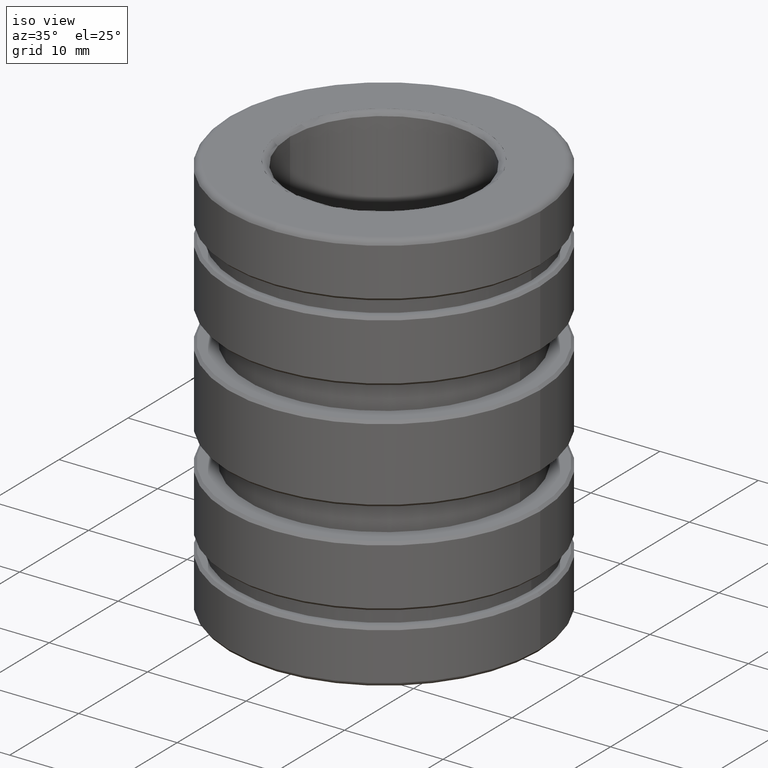
[diagram: clean part render]
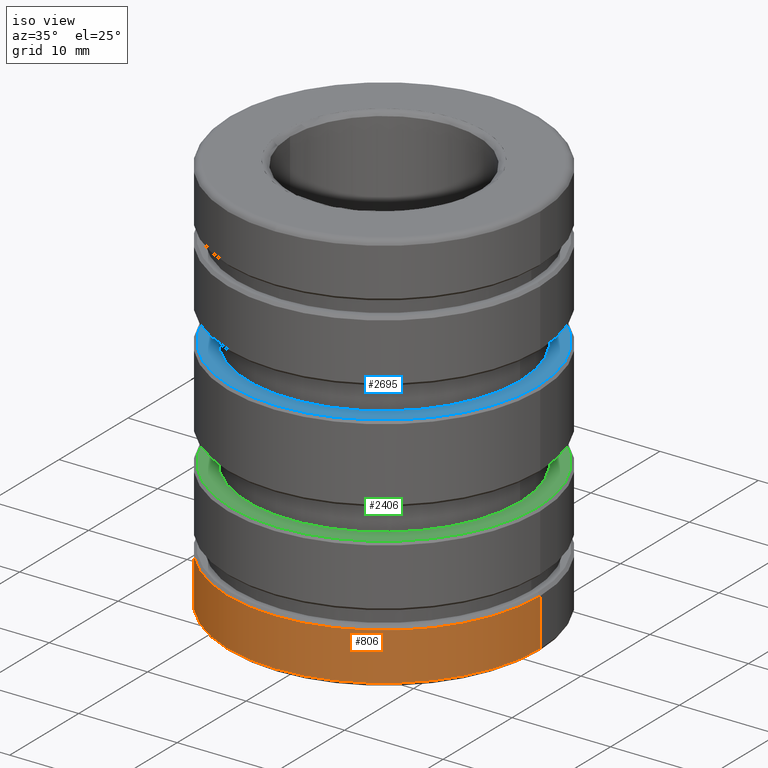
[diagram: same view with three faces highlighted in distinct colors, each labeled with its STEP entity id]
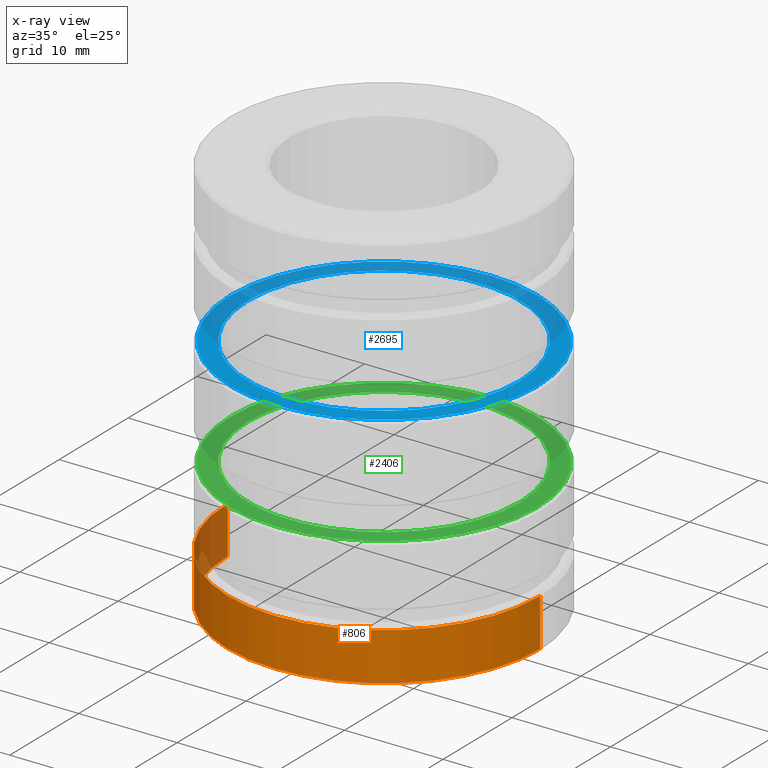
[diagram: x-ray of the same camera — body ghosted, the three highlighted faces saturated]
A machine part, iso view with three faces highlighted in distinct colors.
The next image is the same camera in x-ray (body ghosted, the three faces saturated) — at least one of them is partly hidden behind the body in this view.
Their STEP definitions:

[orange] entity #806 — the highlighted cylindrical surface (partial cylindrical patch) has radius 15.8655 mm, axis along (0, 0, 1).
#15 = CARTESIAN_POINT ( 'NONE',  ( 0.6246249999999999858, 0.000000000000000000, -0.5989999999999999769 ) ) ;
#68 = FACE_OUTER_BOUND ( 'NONE', #997, .T. ) ;
#196 = CARTESIAN_POINT ( 'NONE',  ( 0.6246249999999999858, -3.032960542342103792E-32, -0.7901490131151777119 ) ) ;
#373 = DIRECTION ( 'NONE',  ( -1.000000000000000000, 0.000000000000000000, 0.000000000000000000 ) ) ;
#417 = ORIENTED_EDGE ( 'NONE', *, *, #2651, .T. ) ;
#468 = CARTESIAN_POINT ( 'NONE',  ( 0.6246249999999999858, 0.000000000000000000, -0.8087499999999999689 ) ) ;
#608 = EDGE_CURVE ( 'NONE', #2359, #1093, #977, .T. ) ;
#781 = DIRECTION ( 'NONE',  ( -0.000000000000000000, -0.000000000000000000, 1.000000000000000000 ) ) ;
#806 = ADVANCED_FACE ( 'NONE', ( #68 ), #2140, .T. ) ;
#818 = CIRCLE ( 'NONE', #1559, 0.6246249999999999858 ) ;
#853 = CARTESIAN_POINT ( 'NONE',  ( 0.000000000000000000, -1.381038085112767818E-16, -0.7901490131151777119 ) ) ;
#921 = EDGE_CURVE ( 'NONE', #1472, #987, #1972, .T. ) ;
#977 = LINE ( 'NONE', #1823, #2021 ) ;
#984 = CARTESIAN_POINT ( 'NONE',  ( 0.000000000000000000, -1.381038085112767818E-16, -0.7901490131151777119 ) ) ;
#987 = VERTEX_POINT ( 'NONE', #15 ) ;
#997 = EDGE_LOOP ( 'NONE', ( #1605, #2228, #417, #2133, #1033 ) ) ;
#1033 = ORIENTED_EDGE ( 'NONE', *, *, #1121, .F. ) ;
#1093 = VERTEX_POINT ( 'NONE', #1662 ) ;
#1107 = AXIS2_PLACEMENT_3D ( 'NONE', #1952, #1530, #373 ) ;
#1121 = EDGE_CURVE ( 'NONE', #1093, #987, #1279, .T. ) ;
#1203 = EDGE_CURVE ( 'NONE', #2359, #2086, #2622, .T. ) ;
#1268 = DIRECTION ( 'NONE',  ( 0.000000000000000000, -1.000000000000000000, 2.186790469212938433E-16 ) ) ;
#1279 = CIRCLE ( 'NONE', #1107, 0.6246249999999999858 ) ;
#1299 = DIRECTION ( 'NONE',  ( -0.000000000000000000, -0.000000000000000000, 1.000000000000000000 ) ) ;
#1420 = AXIS2_PLACEMENT_3D ( 'NONE', #853, #1892, #1268 ) ;
#1472 = VERTEX_POINT ( 'NONE', #196 ) ;
#1530 = DIRECTION ( 'NONE',  ( -0.000000000000000000, -0.000000000000000000, 1.000000000000000000 ) ) ;
#1559 = AXIS2_PLACEMENT_3D ( 'NONE', #984, #2163, #1845 ) ;
#1578 = CARTESIAN_POINT ( 'NONE',  ( -7.649450069174155443E-17, -0.6246250000000002078, -0.7901490131151776009 ) ) ;
#1605 = ORIENTED_EDGE ( 'NONE', *, *, #608, .F. ) ;
#1607 = AXIS2_PLACEMENT_3D ( 'NONE', #2740, #1299, #1944 ) ;
#1662 = CARTESIAN_POINT ( 'NONE',  ( -0.6246249999999999858, 7.649450069174152978E-17, -0.5989999999999999769 ) ) ;
#1823 = CARTESIAN_POINT ( 'NONE',  ( -0.6246249999999999858, 7.649450069174152978E-17, -0.8087499999999999689 ) ) ;
#1845 = DIRECTION ( 'NONE',  ( 0.000000000000000000, -1.000000000000000000, 2.186790469212938433E-16 ) ) ;
#1892 = DIRECTION ( 'NONE',  ( 0.000000000000000000, 1.325912000268840659E-16, 1.000000000000000000 ) ) ;
#1944 = DIRECTION ( 'NONE',  ( 1.000000000000000000, 0.000000000000000000, 0.000000000000000000 ) ) ;
#1952 = CARTESIAN_POINT ( 'NONE',  ( 0.000000000000000000, 0.000000000000000000, -0.5989999999999999769 ) ) ;
#1972 = LINE ( 'NONE', #468, #2363 ) ;
#2001 = DIRECTION ( 'NONE',  ( -0.000000000000000000, -0.000000000000000000, 1.000000000000000000 ) ) ;
#2021 = VECTOR ( 'NONE', #781, 39.37007874015748143 ) ;
#2086 = VERTEX_POINT ( 'NONE', #1578 ) ;
#2133 = ORIENTED_EDGE ( 'NONE', *, *, #921, .T. ) ;
#2140 = CYLINDRICAL_SURFACE ( 'NONE', #1607, 0.6246249999999999858 ) ;
#2163 = DIRECTION ( 'NONE',  ( 0.000000000000000000, 1.325912000268840659E-16, 1.000000000000000000 ) ) ;
#2228 = ORIENTED_EDGE ( 'NONE', *, *, #1203, .T. ) ;
#2359 = VERTEX_POINT ( 'NONE', #2564 ) ;
#2363 = VECTOR ( 'NONE', #2001, 39.37007874015748143 ) ;
#2564 = CARTESIAN_POINT ( 'NONE',  ( -0.6246249999999999858, 7.649450069174151745E-17, -0.7901490131151777119 ) ) ;
#2622 = CIRCLE ( 'NONE', #1420, 0.6246249999999999858 ) ;
#2651 = EDGE_CURVE ( 'NONE', #2086, #1472, #818, .T. ) ;
#2740 = CARTESIAN_POINT ( 'NONE',  ( 0.000000000000000000, 0.000000000000000000, -0.8087499999999999689 ) ) ;

[blue] entity #2695 — the highlighted planar face has unit normal (0, 0, -1).
#42 = DIRECTION ( 'NONE',  ( -0.000000000000000000, -0.000000000000000000, -1.000000000000000000 ) ) ;
#175 = AXIS2_PLACEMENT_3D ( 'NONE', #1884, #1221, #563 ) ;
#563 = DIRECTION ( 'NONE',  ( -1.000000000000000000, 0.000000000000000000, 0.000000000000000000 ) ) ;
#584 = DIRECTION ( 'NONE',  ( -1.000000000000000000, 0.000000000000000000, 0.000000000000000000 ) ) ;
#661 = ORIENTED_EDGE ( 'NONE', *, *, #2243, .T. ) ;
#669 = CARTESIAN_POINT ( 'NONE',  ( 0.000000000000000000, 0.000000000000000000, 0.1560000000000001941 ) ) ;
#691 = CARTESIAN_POINT ( 'NONE',  ( 0.000000000000000000, 0.5434999999999999831, 0.1560000000000000553 ) ) ;
#693 = EDGE_CURVE ( 'NONE', #1930, #2739, #1896, .T. ) ;
#707 = CIRCLE ( 'NONE', #175, 0.5434999999999999831 ) ;
#751 = ORIENTED_EDGE ( 'NONE', *, *, #693, .T. ) ;
#885 = DIRECTION ( 'NONE',  ( 0.000000000000000000, 0.000000000000000000, 1.000000000000000000 ) ) ;
#938 = ORIENTED_EDGE ( 'NONE', *, *, #1704, .T. ) ;
#1056 = DIRECTION ( 'NONE',  ( 0.000000000000000000, 0.000000000000000000, 1.000000000000000000 ) ) ;
#1116 = CIRCLE ( 'NONE', #2202, 0.5434999999999999831 ) ;
#1221 = DIRECTION ( 'NONE',  ( -0.000000000000000000, -0.000000000000000000, -1.000000000000000000 ) ) ;
#1271 = FACE_OUTER_BOUND ( 'NONE', #2753, .T. ) ;
#1302 = DIRECTION ( 'NONE',  ( -1.000000000000000000, 0.000000000000000000, 0.000000000000000000 ) ) ;
#1308 = CARTESIAN_POINT ( 'NONE',  ( 0.6141249999999995879, 7.585156112218915536E-17, 0.1560000000000000553 ) ) ;
#1362 = CARTESIAN_POINT ( 'NONE',  ( 0.000000000000000000, 0.000000000000000000, 0.1560000000000000553 ) ) ;
#1504 = VERTEX_POINT ( 'NONE', #1572 ) ;
#1506 = PLANE ( 'NONE',  #2568 ) ;
#1533 = EDGE_CURVE ( 'NONE', #2739, #1930, #1567, .T. ) ;
#1549 = CARTESIAN_POINT ( 'NONE',  ( -0.6141249999999995879, 0.000000000000000000, 0.1560000000000000553 ) ) ;
#1567 = CIRCLE ( 'NONE', #2060, 0.6141249999999995879 ) ;
#1572 = CARTESIAN_POINT ( 'NONE',  ( 0.5434999999999999831, 6.655955353365864118E-17, 0.1560000000000001941 ) ) ;
#1704 = EDGE_CURVE ( 'NONE', #2612, #1504, #1116, .T. ) ;
#1762 = CARTESIAN_POINT ( 'NONE',  ( -0.5434999999999999831, 0.000000000000000000, 0.1560000000000001941 ) ) ;
#1835 = ORIENTED_EDGE ( 'NONE', *, *, #1533, .T. ) ;
#1880 = CARTESIAN_POINT ( 'NONE',  ( 0.000000000000000000, 0.000000000000000000, 0.1560000000000000553 ) ) ;
#1884 = CARTESIAN_POINT ( 'NONE',  ( 0.000000000000000000, 0.000000000000000000, 0.1560000000000001941 ) ) ;
#1896 = CIRCLE ( 'NONE', #2349, 0.6141249999999995879 ) ;
#1930 = VERTEX_POINT ( 'NONE', #1308 ) ;
#2060 = AXIS2_PLACEMENT_3D ( 'NONE', #1362, #885, #2413 ) ;
#2202 = AXIS2_PLACEMENT_3D ( 'NONE', #669, #42, #1302 ) ;
#2243 = EDGE_CURVE ( 'NONE', #1504, #2612, #707, .T. ) ;
#2349 = AXIS2_PLACEMENT_3D ( 'NONE', #1880, #1056, #584 ) ;
#2413 = DIRECTION ( 'NONE',  ( -1.000000000000000000, 0.000000000000000000, 0.000000000000000000 ) ) ;
#2437 = DIRECTION ( 'NONE',  ( -0.000000000000000000, 0.000000000000000000, -1.000000000000000000 ) ) ;
#2555 = FACE_BOUND ( 'NONE', #2565, .T. ) ;
#2565 = EDGE_LOOP ( 'NONE', ( #938, #661 ) ) ;
#2568 = AXIS2_PLACEMENT_3D ( 'NONE', #691, #2437, #2591 ) ;
#2591 = DIRECTION ( 'NONE',  ( -1.000000000000000000, 0.000000000000000000, 0.000000000000000000 ) ) ;
#2612 = VERTEX_POINT ( 'NONE', #1762 ) ;
#2695 = ADVANCED_FACE ( 'NONE', ( #1271, #2555 ), #1506, .F. ) ;
#2739 = VERTEX_POINT ( 'NONE', #1549 ) ;
#2753 = EDGE_LOOP ( 'NONE', ( #1835, #751 ) ) ;

[green] entity #2406 — the highlighted planar face has unit normal (0, 0, -1).
#45 = AXIS2_PLACEMENT_3D ( 'NONE', #1686, #1043, #2778 ) ;
#102 = CARTESIAN_POINT ( 'NONE',  ( 0.5434999999999999831, -6.655955353365864118E-17, -0.2819999999999998619 ) ) ;
#184 = CARTESIAN_POINT ( 'NONE',  ( 0.6141249999999990328, 7.585156112218911838E-17, -0.2819999999999999729 ) ) ;
#291 = AXIS2_PLACEMENT_3D ( 'NONE', #1177, #1433, #1863 ) ;
#305 = CARTESIAN_POINT ( 'NONE',  ( 0.000000000000000000, 0.000000000000000000, -0.2819999999999999729 ) ) ;
#366 = CIRCLE ( 'NONE', #45, 0.5434999999999999831 ) ;
#421 = VERTEX_POINT ( 'NONE', #102 ) ;
#440 = CARTESIAN_POINT ( 'NONE',  ( -0.6141249999999990328, 0.000000000000000000, -0.2819999999999999729 ) ) ;
#582 = EDGE_CURVE ( 'NONE', #2343, #1943, #2764, .T. ) ;
#651 = ORIENTED_EDGE ( 'NONE', *, *, #834, .T. ) ;
#664 = DIRECTION ( 'NONE',  ( 0.000000000000000000, 0.000000000000000000, -1.000000000000000000 ) ) ;
#718 = FACE_OUTER_BOUND ( 'NONE', #2471, .T. ) ;
#740 = AXIS2_PLACEMENT_3D ( 'NONE', #2539, #664, #2356 ) ;
#769 = CARTESIAN_POINT ( 'NONE',  ( -0.5434999999999999831, 0.000000000000000000, -0.2819999999999998619 ) ) ;
#834 = EDGE_CURVE ( 'NONE', #421, #1042, #366, .T. ) ;
#937 = CARTESIAN_POINT ( 'NONE',  ( 0.000000000000000000, 0.6565000000000000835, -0.2819999999999999729 ) ) ;
#1042 = VERTEX_POINT ( 'NONE', #769 ) ;
#1043 = DIRECTION ( 'NONE',  ( 0.000000000000000000, 0.000000000000000000, -1.000000000000000000 ) ) ;
#1059 = ORIENTED_EDGE ( 'NONE', *, *, #1140, .T. ) ;
#1140 = EDGE_CURVE ( 'NONE', #1042, #421, #1325, .T. ) ;
#1177 = CARTESIAN_POINT ( 'NONE',  ( 0.000000000000000000, 0.000000000000000000, -0.2819999999999999729 ) ) ;
#1288 = CIRCLE ( 'NONE', #2424, 0.6141249999999990328 ) ;
#1310 = ORIENTED_EDGE ( 'NONE', *, *, #1998, .T. ) ;
#1325 = CIRCLE ( 'NONE', #740, 0.5434999999999999831 ) ;
#1355 = DIRECTION ( 'NONE',  ( -0.000000000000000000, -0.000000000000000000, 1.000000000000000000 ) ) ;
#1368 = DIRECTION ( 'NONE',  ( 1.000000000000000000, 0.000000000000000000, 0.000000000000000000 ) ) ;
#1433 = DIRECTION ( 'NONE',  ( -0.000000000000000000, -0.000000000000000000, 1.000000000000000000 ) ) ;
#1604 = DIRECTION ( 'NONE',  ( 0.000000000000000000, 0.000000000000000000, -1.000000000000000000 ) ) ;
#1686 = CARTESIAN_POINT ( 'NONE',  ( 0.000000000000000000, 0.000000000000000000, -0.2819999999999998619 ) ) ;
#1735 = ORIENTED_EDGE ( 'NONE', *, *, #582, .T. ) ;
#1819 = PLANE ( 'NONE',  #2805 ) ;
#1863 = DIRECTION ( 'NONE',  ( -1.000000000000000000, 0.000000000000000000, 0.000000000000000000 ) ) ;
#1943 = VERTEX_POINT ( 'NONE', #440 ) ;
#1998 = EDGE_CURVE ( 'NONE', #1943, #2343, #1288, .T. ) ;
#2226 = DIRECTION ( 'NONE',  ( -1.000000000000000000, 0.000000000000000000, 0.000000000000000000 ) ) ;
#2265 = EDGE_LOOP ( 'NONE', ( #1059, #651 ) ) ;
#2343 = VERTEX_POINT ( 'NONE', #184 ) ;
#2356 = DIRECTION ( 'NONE',  ( -1.000000000000000000, 0.000000000000000000, 0.000000000000000000 ) ) ;
#2406 = ADVANCED_FACE ( 'NONE', ( #718, #2469 ), #1819, .F. ) ;
#2424 = AXIS2_PLACEMENT_3D ( 'NONE', #305, #1355, #2226 ) ;
#2469 = FACE_BOUND ( 'NONE', #2265, .T. ) ;
#2471 = EDGE_LOOP ( 'NONE', ( #1310, #1735 ) ) ;
#2539 = CARTESIAN_POINT ( 'NONE',  ( 0.000000000000000000, 0.000000000000000000, -0.2819999999999998619 ) ) ;
#2764 = CIRCLE ( 'NONE', #291, 0.6141249999999990328 ) ;
#2778 = DIRECTION ( 'NONE',  ( -1.000000000000000000, 0.000000000000000000, 0.000000000000000000 ) ) ;
#2805 = AXIS2_PLACEMENT_3D ( 'NONE', #937, #1604, #1368 ) ;